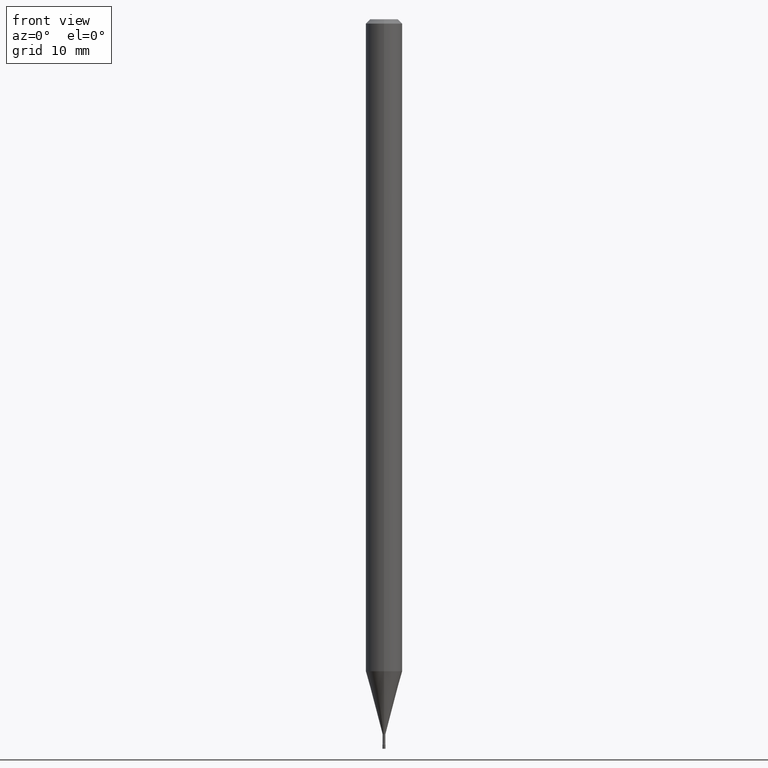
[diagram: clean part render]
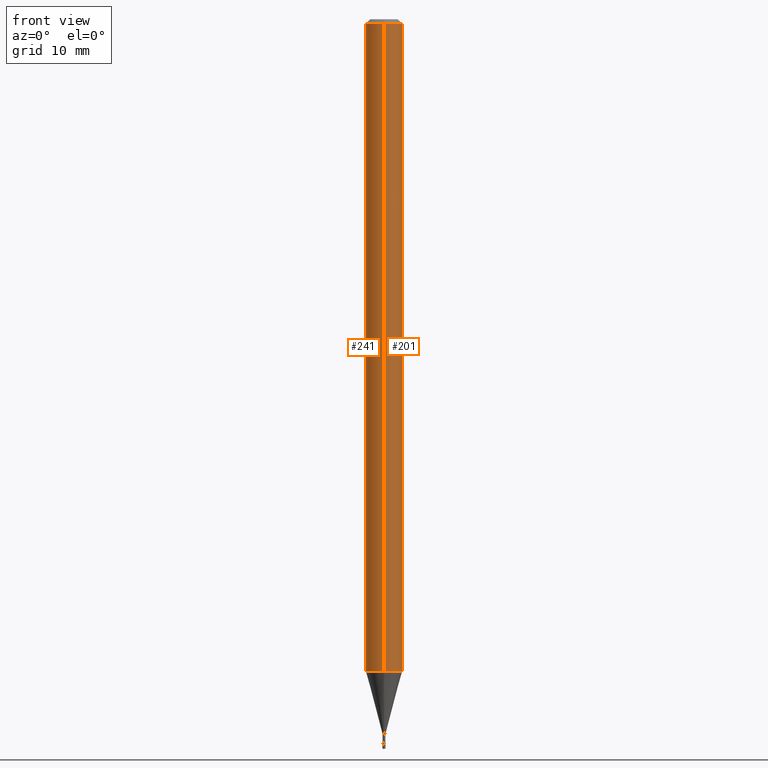
[diagram: same view with one multi-face feature highlighted, each face labeled with its STEP entity id]
A machine part, front view. The highlighted faces form ONE feature: a constant-radius fillet chain: 2 tangent blend faces with common blend radius 1.5875 mm. The faces share edges in the B-rep.
Their STEP definitions:
[1] entity #201 (Cylinder):
#17 = LINE ( 'NONE', #175, #495 ) ;
#32 = ORIENTED_EDGE ( 'NONE', *, *, #409, .T. ) ;
#33 = DIRECTION ( 'NONE',  ( -6.982962677686265922E-15, -1.000000000000000000, 3.490453049505312812E-15 ) ) ;
#35 = ORIENTED_EDGE ( 'NONE', *, *, #489, .T. ) ;
#38 = VERTEX_POINT ( 'NONE', #136 ) ;
#46 = CIRCLE ( 'NONE', #169, 0.06250000000000000000 ) ;
#79 = EDGE_CURVE ( 'NONE', #38, #314, #183, .T. ) ;
#80 = CARTESIAN_POINT ( 'NONE',  ( -4.364351673553370408E-16, -0.06250000000000781319, -2.234287463322518708 ) ) ;
#88 = DIRECTION ( 'NONE',  ( -6.982962677686265922E-15, -1.000000000000000000, 3.483106191921935554E-15 ) ) ;
#104 = AXIS2_PLACEMENT_3D ( 'NONE', #167, #131, #88 ) ;
#131 = DIRECTION ( 'NONE',  ( -2.446186856791931682E-29, 3.490453049505312812E-15, 1.000000000000000000 ) ) ;
#136 = CARTESIAN_POINT ( 'NONE',  ( -4.364351673553912750E-16, -0.06250000000000005551, -0.01499999999999981209 ) ) ;
#153 = CARTESIAN_POINT ( 'NONE',  ( 0.000000000000000000, 0.000000000000000000, 0.000000000000000000 ) ) ;
#167 = CARTESIAN_POINT ( 'NONE',  ( 3.669280285187904915E-31, -5.235679574257980361E-17, -0.01500000000000003067 ) ) ;
#169 = AXIS2_PLACEMENT_3D ( 'NONE', #365, #484, #363 ) ;
#172 = LINE ( 'NONE', #499, #487 ) ;
#175 = CARTESIAN_POINT ( 'NONE',  ( -4.364351673553916201E-16, -0.06250000000000000000, 2.181533155940820508E-16 ) ) ;
#183 = CIRCLE ( 'NONE', #104, 0.06250000000000000000 ) ;
#201 = ADVANCED_FACE ( 'NONE', ( #434 ), #428, .T. ) ;
#215 = EDGE_LOOP ( 'NONE', ( #35, #32, #323, #317 ) ) ;
#299 = DIRECTION ( 'NONE',  ( -2.446186856791931682E-29, 3.490453049505312812E-15, 1.000000000000000000 ) ) ;
#303 = CARTESIAN_POINT ( 'NONE',  ( 4.440892098501175406E-16, 0.06249999999999995143, -0.01500000000000024751 ) ) ;
#314 = VERTEX_POINT ( 'NONE', #303 ) ;
#317 = ORIENTED_EDGE ( 'NONE', *, *, #320, .F. ) ;
#320 = EDGE_CURVE ( 'NONE', #518, #38, #17, .T. ) ;
#323 = ORIENTED_EDGE ( 'NONE', *, *, #79, .F. ) ;
#347 = CARTESIAN_POINT ( 'NONE',  ( 4.440892098501171462E-16, 0.06249999999999218681, -2.234287463322519596 ) ) ;
#363 = DIRECTION ( 'NONE',  ( -6.982962677686265922E-15, -1.000000000000000000, 4.370956789862821150E-15 ) ) ;
#365 = CARTESIAN_POINT ( 'NONE',  ( 5.465484627074530748E-29, -7.798675489825575723E-15, -2.234287463322519152 ) ) ;
#409 = EDGE_CURVE ( 'NONE', #429, #314, #172, .T. ) ;
#428 = CYLINDRICAL_SURFACE ( 'NONE', #453, 0.06250000000000000000 ) ;
#429 = VERTEX_POINT ( 'NONE', #347 ) ;
#434 = FACE_OUTER_BOUND ( 'NONE', #215, .T. ) ;
#437 = DIRECTION ( 'NONE',  ( -2.446186856791931682E-29, 3.490453049505312812E-15, 1.000000000000000000 ) ) ;
#453 = AXIS2_PLACEMENT_3D ( 'NONE', #153, #437, #33 ) ;
#484 = DIRECTION ( 'NONE',  ( -2.446186856791931682E-29, 3.490453049505312812E-15, 1.000000000000000000 ) ) ;
#487 = VECTOR ( 'NONE', #299, 39.37007874015748143 ) ;
#489 = EDGE_CURVE ( 'NONE', #518, #429, #46, .T. ) ;
#495 = VECTOR ( 'NONE', #498, 39.37007874015748143 ) ;
#498 = DIRECTION ( 'NONE',  ( -2.446186856791931682E-29, 3.490453049505312812E-15, 1.000000000000000000 ) ) ;
#499 = CARTESIAN_POINT ( 'NONE',  ( 4.440892098500625669E-16, 0.06250000000000000000, -2.181533155940820508E-16 ) ) ;
#518 = VERTEX_POINT ( 'NONE', #80 ) ;
[2] entity #241 (Cylinder):
#6 = AXIS2_PLACEMENT_3D ( 'NONE', #492, #411, #170 ) ;
#17 = LINE ( 'NONE', #175, #495 ) ;
#18 = EDGE_CURVE ( 'NONE', #314, #38, #199, .T. ) ;
#38 = VERTEX_POINT ( 'NONE', #136 ) ;
#76 = CARTESIAN_POINT ( 'NONE',  ( 5.465484627074530748E-29, -7.798675489825575723E-15, -2.234287463322519152 ) ) ;
#80 = CARTESIAN_POINT ( 'NONE',  ( -4.364351673553370408E-16, -0.06250000000000781319, -2.234287463322518708 ) ) ;
#125 = EDGE_LOOP ( 'NONE', ( #403, #191, #257, #390 ) ) ;
#136 = CARTESIAN_POINT ( 'NONE',  ( -4.364351673553912750E-16, -0.06250000000000005551, -0.01499999999999981209 ) ) ;
#170 = DIRECTION ( 'NONE',  ( -6.982962677686265922E-15, -1.000000000000000000, 3.483106191921935554E-15 ) ) ;
#172 = LINE ( 'NONE', #499, #487 ) ;
#175 = CARTESIAN_POINT ( 'NONE',  ( -4.364351673553916201E-16, -0.06250000000000000000, 2.181533155940820508E-16 ) ) ;
#189 = DIRECTION ( 'NONE',  ( -2.446186856791931682E-29, 3.490453049505312812E-15, 1.000000000000000000 ) ) ;
#191 = ORIENTED_EDGE ( 'NONE', *, *, #281, .T. ) ;
#199 = CIRCLE ( 'NONE', #6, 0.06250000000000000000 ) ;
#219 = DIRECTION ( 'NONE',  ( -2.446186856791931682E-29, 3.490453049505312812E-15, 1.000000000000000000 ) ) ;
#226 = CYLINDRICAL_SURFACE ( 'NONE', #325, 0.06250000000000000000 ) ;
#234 = DIRECTION ( 'NONE',  ( -6.982962677686265922E-15, -1.000000000000000000, 4.370956789862821150E-15 ) ) ;
#241 = ADVANCED_FACE ( 'NONE', ( #266 ), #226, .T. ) ;
#243 = AXIS2_PLACEMENT_3D ( 'NONE', #76, #219, #234 ) ;
#257 = ORIENTED_EDGE ( 'NONE', *, *, #320, .T. ) ;
#266 = FACE_OUTER_BOUND ( 'NONE', #125, .T. ) ;
#271 = CIRCLE ( 'NONE', #243, 0.06250000000000000000 ) ;
#281 = EDGE_CURVE ( 'NONE', #429, #518, #271, .T. ) ;
#299 = DIRECTION ( 'NONE',  ( -2.446186856791931682E-29, 3.490453049505312812E-15, 1.000000000000000000 ) ) ;
#303 = CARTESIAN_POINT ( 'NONE',  ( 4.440892098501175406E-16, 0.06249999999999995143, -0.01500000000000024751 ) ) ;
#314 = VERTEX_POINT ( 'NONE', #303 ) ;
#320 = EDGE_CURVE ( 'NONE', #518, #38, #17, .T. ) ;
#325 = AXIS2_PLACEMENT_3D ( 'NONE', #475, #189, #444 ) ;
#347 = CARTESIAN_POINT ( 'NONE',  ( 4.440892098501171462E-16, 0.06249999999999218681, -2.234287463322519596 ) ) ;
#390 = ORIENTED_EDGE ( 'NONE', *, *, #18, .F. ) ;
#403 = ORIENTED_EDGE ( 'NONE', *, *, #409, .F. ) ;
#409 = EDGE_CURVE ( 'NONE', #429, #314, #172, .T. ) ;
#411 = DIRECTION ( 'NONE',  ( -2.446186856791931682E-29, 3.490453049505312812E-15, 1.000000000000000000 ) ) ;
#429 = VERTEX_POINT ( 'NONE', #347 ) ;
#444 = DIRECTION ( 'NONE',  ( -6.982962677686265922E-15, -1.000000000000000000, 3.490453049505312812E-15 ) ) ;
#475 = CARTESIAN_POINT ( 'NONE',  ( 0.000000000000000000, 0.000000000000000000, 0.000000000000000000 ) ) ;
#487 = VECTOR ( 'NONE', #299, 39.37007874015748143 ) ;
#492 = CARTESIAN_POINT ( 'NONE',  ( 3.669280285187904915E-31, -5.235679574257980361E-17, -0.01500000000000003067 ) ) ;
#495 = VECTOR ( 'NONE', #498, 39.37007874015748143 ) ;
#498 = DIRECTION ( 'NONE',  ( -2.446186856791931682E-29, 3.490453049505312812E-15, 1.000000000000000000 ) ) ;
#499 = CARTESIAN_POINT ( 'NONE',  ( 4.440892098500625669E-16, 0.06250000000000000000, -2.181533155940820508E-16 ) ) ;
#518 = VERTEX_POINT ( 'NONE', #80 ) ;